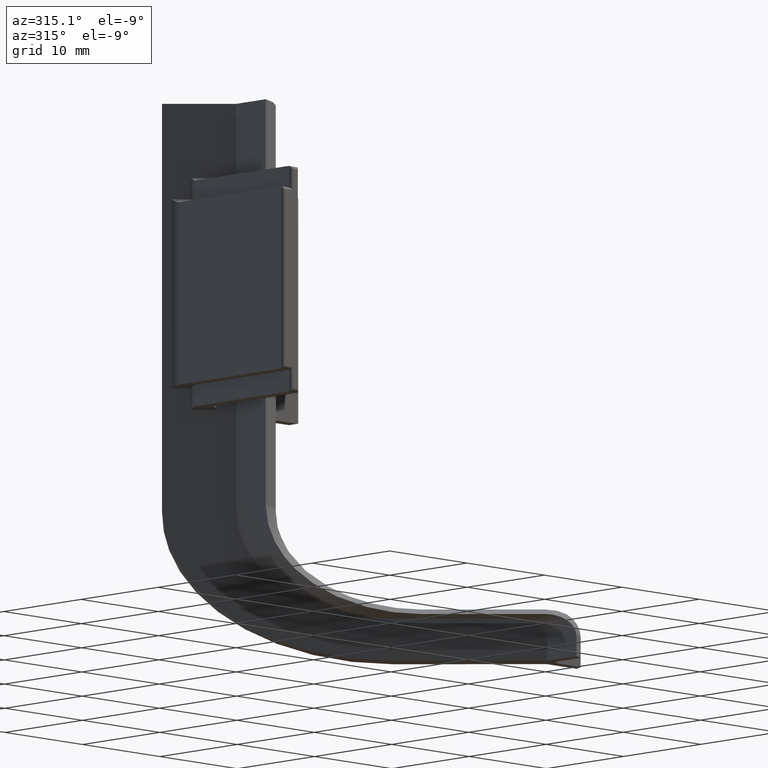
[diagram: clean part render]
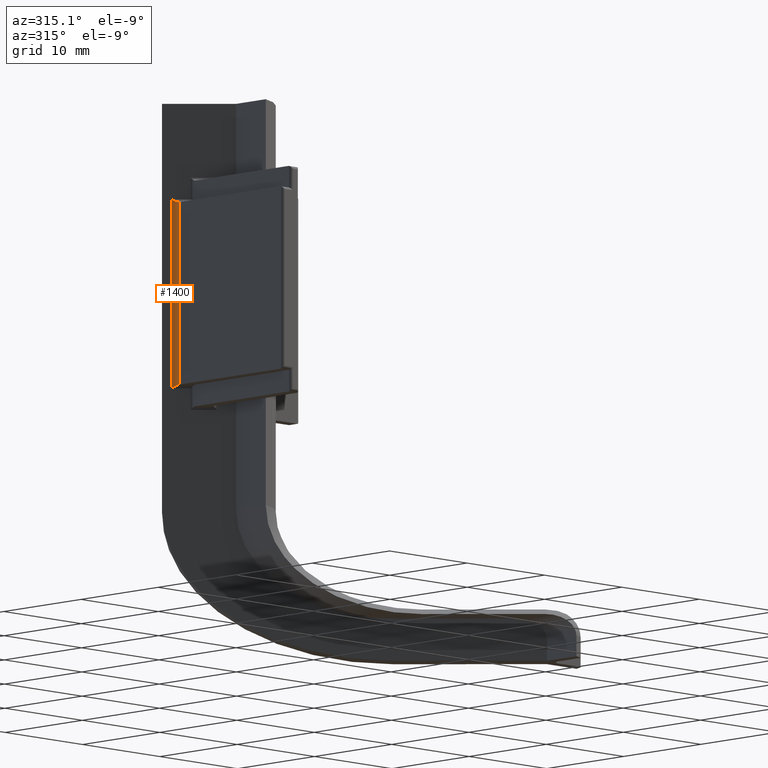
[diagram: same view with one face highlighted and labeled with its STEP entity id]
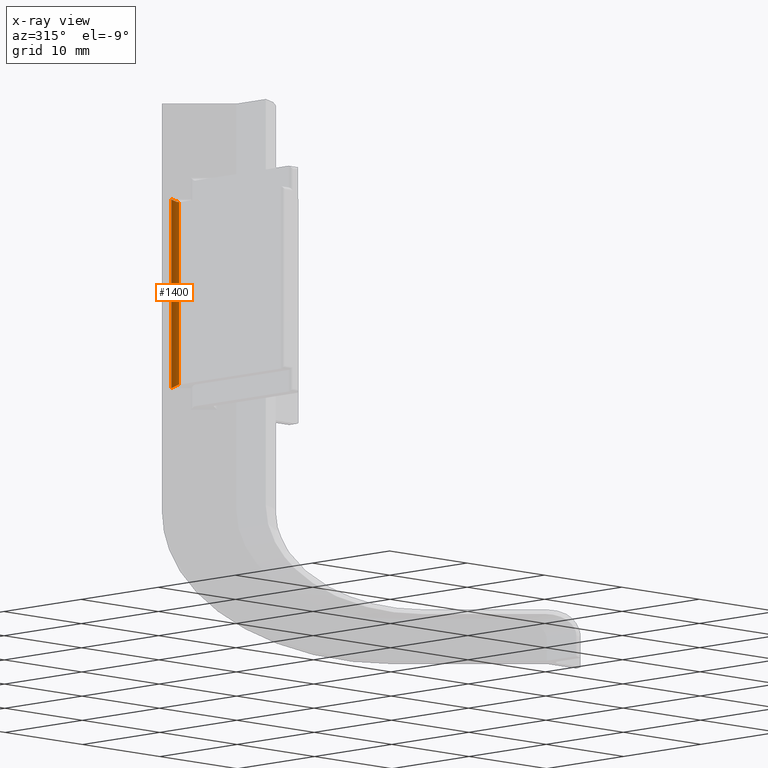
[diagram: x-ray of the same camera — body ghosted, the highlighted face saturated]
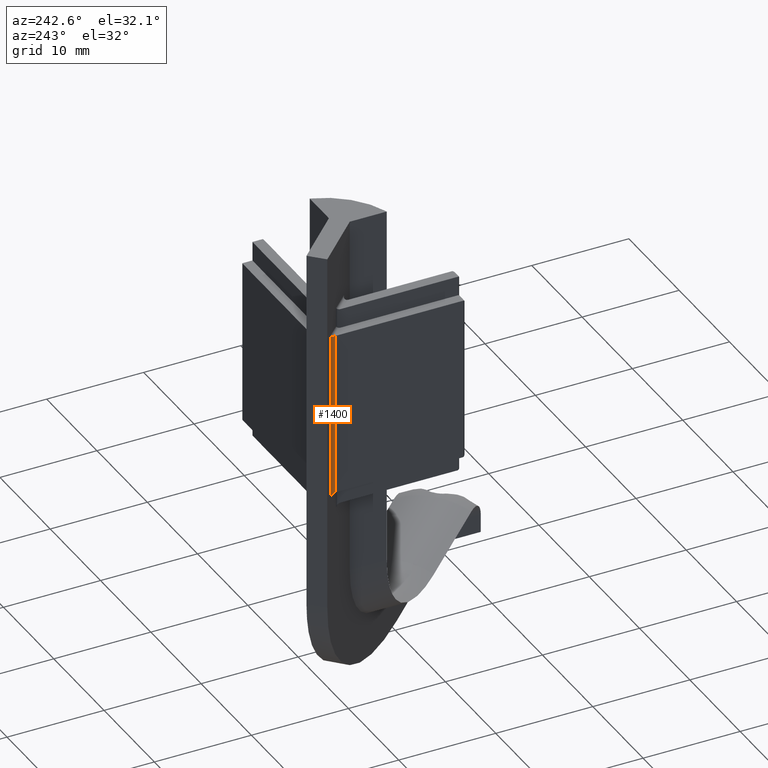
[diagram: same view with one face highlighted and labeled with its STEP entity id]
A machine part, auxiliary view. The second image highlights one B-rep face of the part: STEP entity #1400.
The next image is the same camera in x-ray: the body ghosted, the highlighted face saturated — about 0% of this face is hidden behind the body in this view.
A second angle (auxiliary view) of the same face is appended — the face is thin or edge-on in the first view.
In plain terms, the highlighted cylindrical surface (edge-blend (fillet) strip) has radius 1 mm, axis along (-0, 0, 1).
Its self-contained STEP definition (entity closure, byte-faithful):
#74=B_SPLINE_CURVE_WITH_KNOTS('',3,(#2380,#2381,#2382,#2383,#2384,#2385,
#2386,#2387),.UNSPECIFIED.,.F.,.F.,(4,2,2,4),(0.186108944979139,0.203400227400266,
0.221687890527435,0.266288681528081),.UNSPECIFIED.);
#75=B_SPLINE_CURVE_WITH_KNOTS('',3,(#2423,#2424,#2425,#2426,#2427,#2428,
#2429,#2430),.UNSPECIFIED.,.F.,.F.,(4,2,2,4),(0.,0.0446007910006446,0.062888454127814,
0.0801797365489403),.UNSPECIFIED.);
#122=CYLINDRICAL_SURFACE('',#1560,1.);
#192=FACE_OUTER_BOUND('',#274,.T.);
#274=EDGE_LOOP('',(#1199,#1200,#1201,#1202));
#419=LINE('',#2552,#539);
#420=LINE('',#2555,#540);
#539=VECTOR('',#1920,10.);
#540=VECTOR('',#1925,10.);
#626=VERTEX_POINT('',#2378);
#627=VERTEX_POINT('',#2379);
#637=VERTEX_POINT('',#2412);
#642=VERTEX_POINT('',#2421);
#781=EDGE_CURVE('',#626,#627,#74,.F.);
#799=EDGE_CURVE('',#642,#637,#75,.T.);
#861=EDGE_CURVE('',#627,#637,#419,.T.);
#862=EDGE_CURVE('',#642,#626,#420,.T.);
#1199=ORIENTED_EDGE('',*,*,#861,.T.);
#1200=ORIENTED_EDGE('',*,*,#799,.F.);
#1201=ORIENTED_EDGE('',*,*,#862,.T.);
#1202=ORIENTED_EDGE('',*,*,#781,.T.);
#1400=ADVANCED_FACE('',(#192),#122,.F.);
#1560=AXIS2_PLACEMENT_3D('',#2554,#1923,#1924);
#1920=DIRECTION('',(-1.63504245572673E-16,1.07993094341415E-16,1.));
#1923=DIRECTION('center_axis',(-1.63504245572673E-16,1.07993094341415E-16,
1.));
#1924=DIRECTION('ref_axis',(0.923879532511287,0.38268343236509,0.));
#1925=DIRECTION('',(1.63504245572673E-16,-1.07993094341415E-16,-1.));
#2378=CARTESIAN_POINT('',(-4.29289321881346,54.1112698372208,-8.74999999999998));
#2379=CARTESIAN_POINT('',(-4.00000000000001,53.4041630560343,-8.45008418904436));
#2380=CARTESIAN_POINT('Ctrl Pts',(-4.,53.4041630560342,-8.45008418904436));
#2381=CARTESIAN_POINT('Ctrl Pts',(-4.,53.4622217517297,-8.45105699419133));
#2382=CARTESIAN_POINT('Ctrl Pts',(-4.00534545847021,53.5237907122515,-8.46071187005164));
#2383=CARTESIAN_POINT('Ctrl Pts',(-4.02759911380678,53.6460669424604,-8.49228442646935));
#2384=CARTESIAN_POINT('Ctrl Pts',(-4.04515353272399,53.7065695315036,-8.51474801277001));
#2385=CARTESIAN_POINT('Ctrl Pts',(-4.11403745270185,53.8878918493298,-8.59425396635432));
#2386=CARTESIAN_POINT('Ctrl Pts',(-4.20069243090957,54.0190690493169,-8.67858157678818));
#2387=CARTESIAN_POINT('Ctrl Pts',(-4.29289321881346,54.1112698372208,-8.74999999999998));
#2412=CARTESIAN_POINT('',(-4.00000000000001,53.4041630560343,8.4500841890444));
#2421=CARTESIAN_POINT('',(-4.29289321881345,54.1112698372208,8.75000000000002));
#2423=CARTESIAN_POINT('Ctrl Pts',(-4.29289321881346,54.1112698372208,8.75000000000002));
#2424=CARTESIAN_POINT('Ctrl Pts',(-4.20069243090956,54.0190690493169,8.67858157678822));
#2425=CARTESIAN_POINT('Ctrl Pts',(-4.11403745270185,53.8878918493298,8.59425396635436));
#2426=CARTESIAN_POINT('Ctrl Pts',(-4.04515353272399,53.7065695315036,8.51474801277004));
#2427=CARTESIAN_POINT('Ctrl Pts',(-4.02759911380679,53.6460669424604,8.49228442646939));
#2428=CARTESIAN_POINT('Ctrl Pts',(-4.00534545847021,53.5237907122515,8.46071187005168));
#2429=CARTESIAN_POINT('Ctrl Pts',(-4.,53.4622217517297,8.45105699419136));
#2430=CARTESIAN_POINT('Ctrl Pts',(-4.00000000000001,53.4041630560342,8.4500841890444));
#2552=CARTESIAN_POINT('',(-4.00000000000001,53.4041630560343,24.0214771252611));
#2554=CARTESIAN_POINT('Origin',(-5.00000000000001,53.4041630560343,24.0214771252611));
#2555=CARTESIAN_POINT('',(-4.29289321881346,54.1112698372208,24.0214771252611));